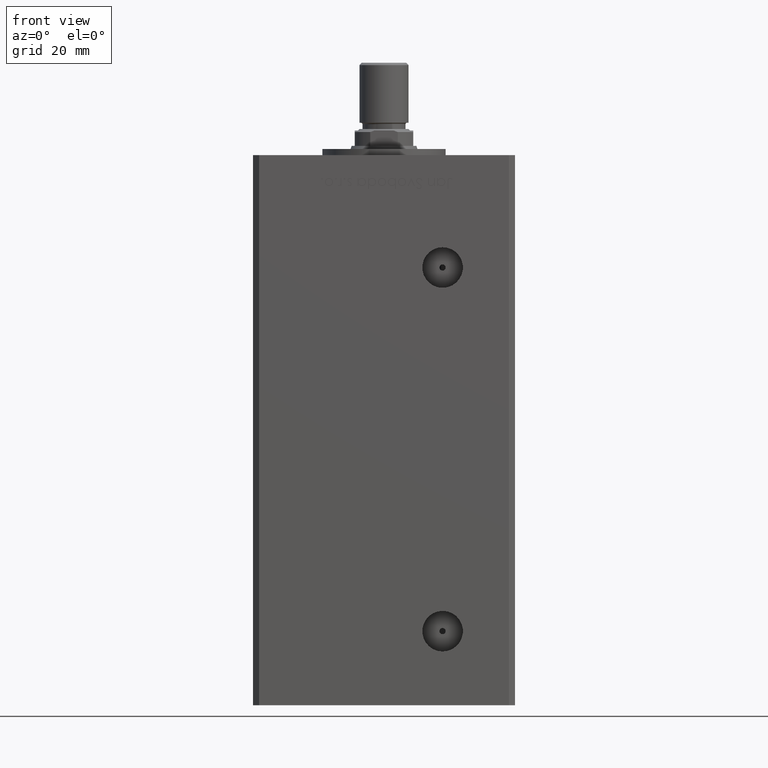
[diagram: clean part render]
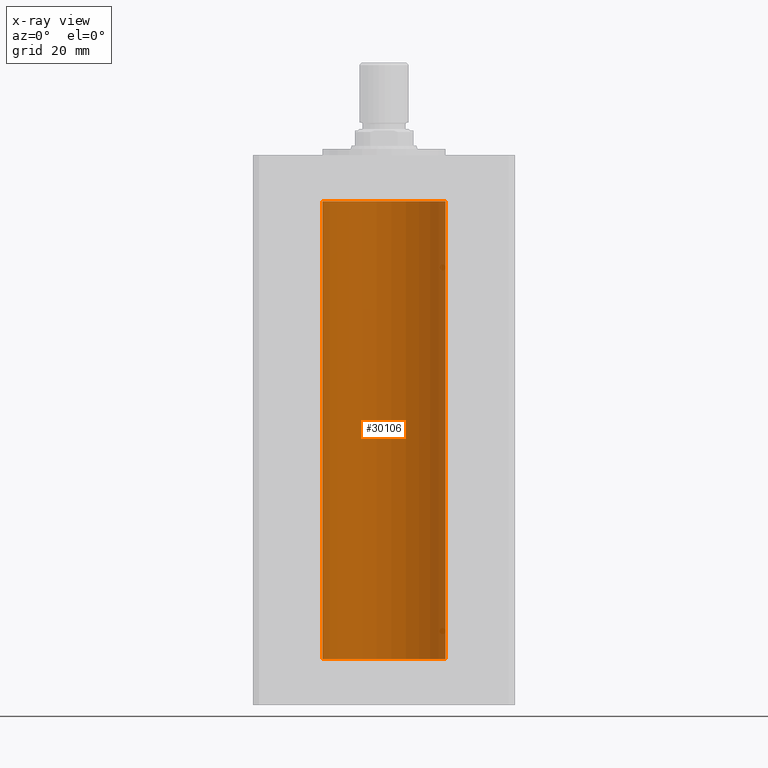
[diagram: x-ray — body ghosted, one internal face saturated and labeled with its STEP entity id]
A machine part, front view, then the same camera in x-ray: the body is ghosted and one INTERNAL B-rep face — a face not visible from any outside direction — is saturated and labeled: STEP entity #30106.
In plain terms, the highlighted cylindrical surface (partial cylindrical patch) has radius 20 mm, axis along (-0, -0, -1).
Its self-contained STEP definition (entity closure, byte-faithful):
#1210 = FACE_OUTER_BOUND ( 'NONE', #24633, .T. ) ;
#1310 = CARTESIAN_POINT ( 'NONE',  ( -20.00000000000000000, 0.000000000000000000, 148.5000000000000000 ) ) ;
#1478 = VERTEX_POINT ( 'NONE', #1701 ) ;
#1701 = CARTESIAN_POINT ( 'NONE',  ( 20.00000000000000000, 2.449293598294706513E-15, 148.5000000000000000 ) ) ;
#2913 = DIRECTION ( 'NONE',  ( -0.000000000000000000, 0.000000000000000000, 1.000000000000000000 ) ) ;
#2980 = ORIENTED_EDGE ( 'NONE', *, *, #44070, .T. ) ;
#5367 = CIRCLE ( 'NONE', #35025, 20.00000000000000000 ) ;
#9142 = CARTESIAN_POINT ( 'NONE',  ( 0.000000000000000000, 0.000000000000000000, 148.5000000000000000 ) ) ;
#10275 = LINE ( 'NONE', #1310, #40405 ) ;
#10388 = CARTESIAN_POINT ( 'NONE',  ( 0.000000000000000000, 0.000000000000000000, 148.5000000000000000 ) ) ;
#11939 = DIRECTION ( 'NONE',  ( -0.000000000000000000, 0.000000000000000000, 1.000000000000000000 ) ) ;
#12448 = VERTEX_POINT ( 'NONE', #27481 ) ;
#14423 = CYLINDRICAL_SURFACE ( 'NONE', #29532, 20.00000000000000000 ) ;
#14668 = VERTEX_POINT ( 'NONE', #18514 ) ;
#15196 = VECTOR ( 'NONE', #45309, 1000.000000000000000 ) ;
#16113 = ORIENTED_EDGE ( 'NONE', *, *, #29919, .F. ) ;
#17471 = CARTESIAN_POINT ( 'NONE',  ( 20.00000000000000000, 2.449293598294706513E-15, 148.5000000000000000 ) ) ;
#17720 = LINE ( 'NONE', #17471, #15196 ) ;
#18514 = CARTESIAN_POINT ( 'NONE',  ( -20.00000000000000000, 0.000000000000000000, 148.5000000000000000 ) ) ;
#23954 = ORIENTED_EDGE ( 'NONE', *, *, #33257, .F. ) ;
#24633 = EDGE_LOOP ( 'NONE', ( #23954, #2980, #39868, #16113 ) ) ;
#25332 = EDGE_CURVE ( 'NONE', #14668, #25670, #10275, .T. ) ;
#25670 = VERTEX_POINT ( 'NONE', #26420 ) ;
#26420 = CARTESIAN_POINT ( 'NONE',  ( -20.00000000000000000, 0.000000000000000000, 0.000000000000000000 ) ) ;
#27481 = CARTESIAN_POINT ( 'NONE',  ( 20.00000000000000000, 2.449293598294706513E-15, 0.000000000000000000 ) ) ;
#27833 = DIRECTION ( 'NONE',  ( 1.000000000000000000, 0.000000000000000000, 0.000000000000000000 ) ) ;
#29532 = AXIS2_PLACEMENT_3D ( 'NONE', #9142, #41775, #29847 ) ;
#29847 = DIRECTION ( 'NONE',  ( -1.000000000000000000, 0.000000000000000000, 0.000000000000000000 ) ) ;
#29919 = EDGE_CURVE ( 'NONE', #12448, #25670, #30379, .T. ) ;
#30106 = ADVANCED_FACE ( 'NONE', ( #1210 ), #14423, .F. ) ;
#30379 = CIRCLE ( 'NONE', #33740, 20.00000000000000000 ) ;
#33257 = EDGE_CURVE ( 'NONE', #1478, #12448, #17720, .T. ) ;
#33740 = AXIS2_PLACEMENT_3D ( 'NONE', #43993, #2913, #27833 ) ;
#35025 = AXIS2_PLACEMENT_3D ( 'NONE', #10388, #11939, #47507 ) ;
#39868 = ORIENTED_EDGE ( 'NONE', *, *, #25332, .T. ) ;
#40405 = VECTOR ( 'NONE', #42136, 1000.000000000000000 ) ;
#41775 = DIRECTION ( 'NONE',  ( -0.000000000000000000, -0.000000000000000000, -1.000000000000000000 ) ) ;
#42136 = DIRECTION ( 'NONE',  ( -0.000000000000000000, -0.000000000000000000, -1.000000000000000000 ) ) ;
#43993 = CARTESIAN_POINT ( 'NONE',  ( 0.000000000000000000, 0.000000000000000000, 0.000000000000000000 ) ) ;
#44070 = EDGE_CURVE ( 'NONE', #1478, #14668, #5367, .T. ) ;
#45309 = DIRECTION ( 'NONE',  ( -0.000000000000000000, -0.000000000000000000, -1.000000000000000000 ) ) ;
#47507 = DIRECTION ( 'NONE',  ( 1.000000000000000000, 0.000000000000000000, 0.000000000000000000 ) ) ;